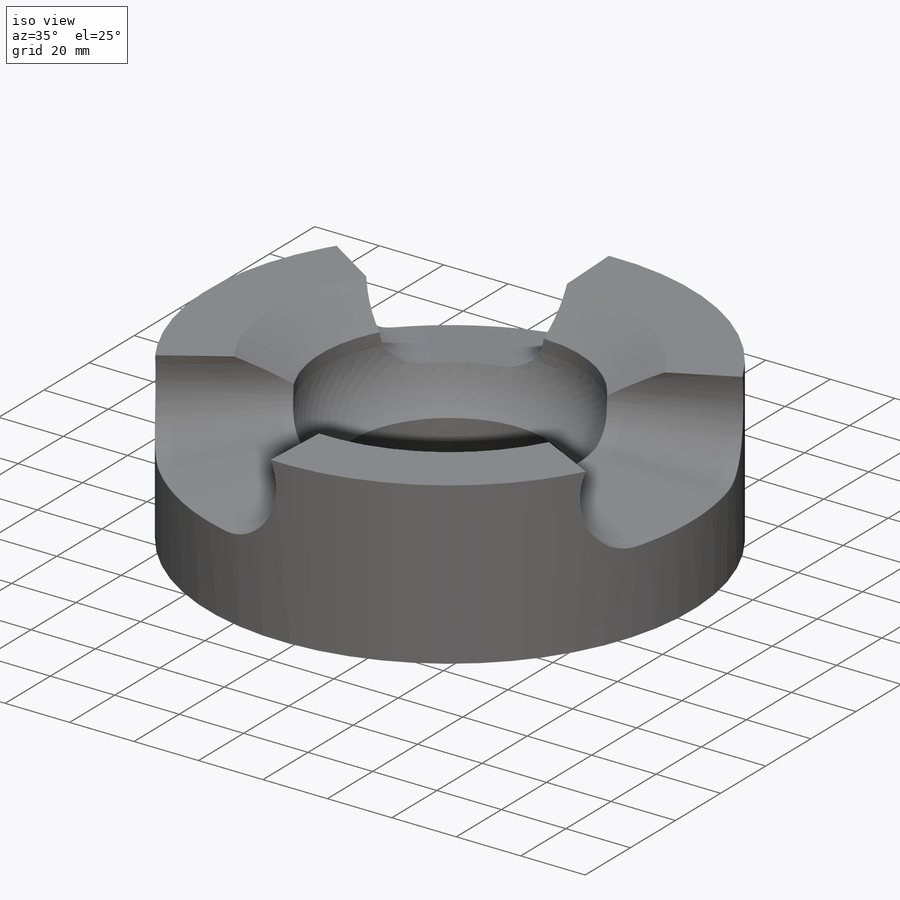
[diagram: iso view]
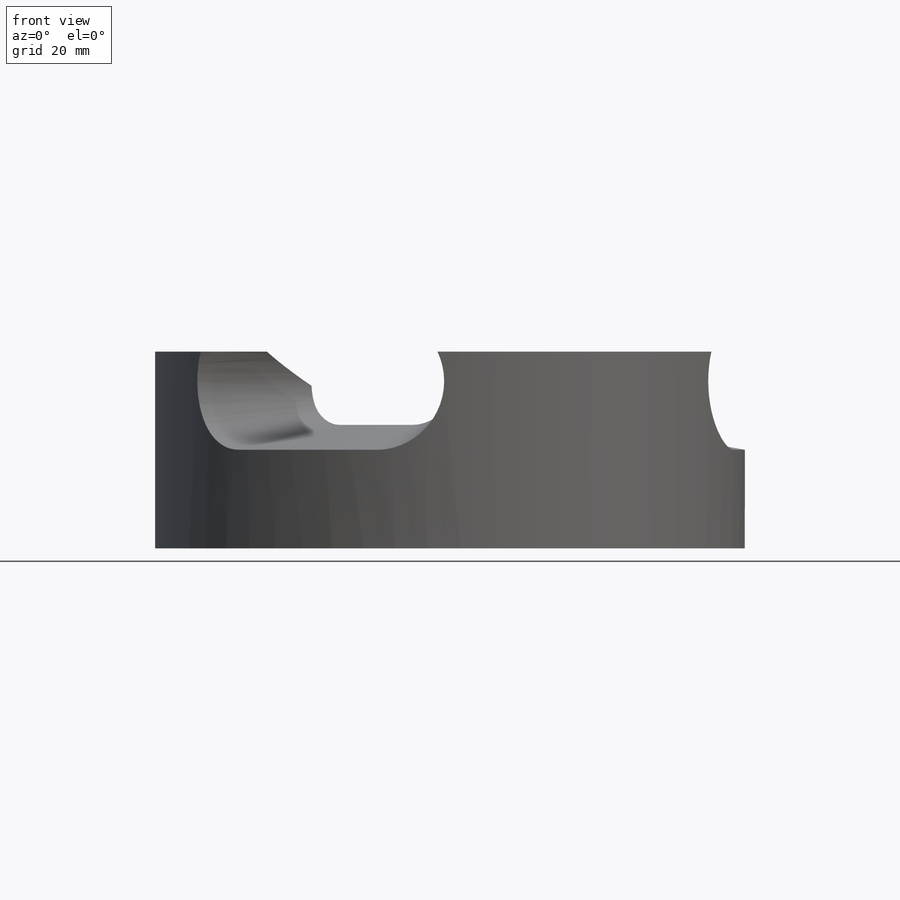
[diagram: front view]
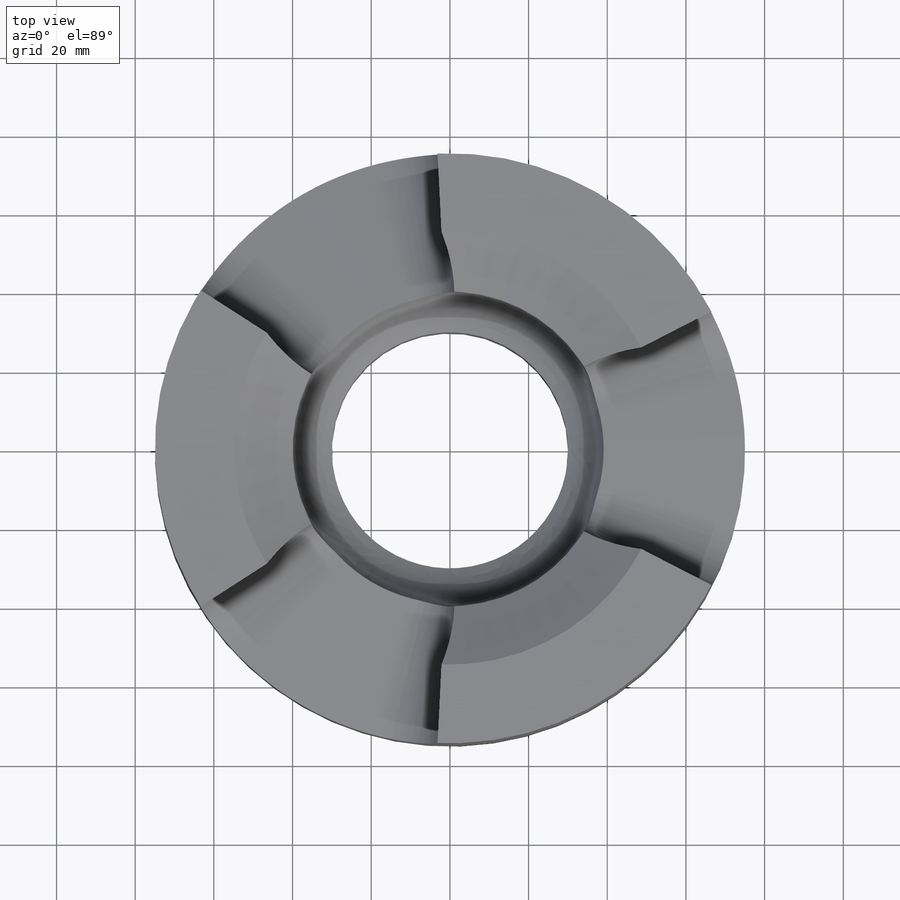
[diagram: top view]
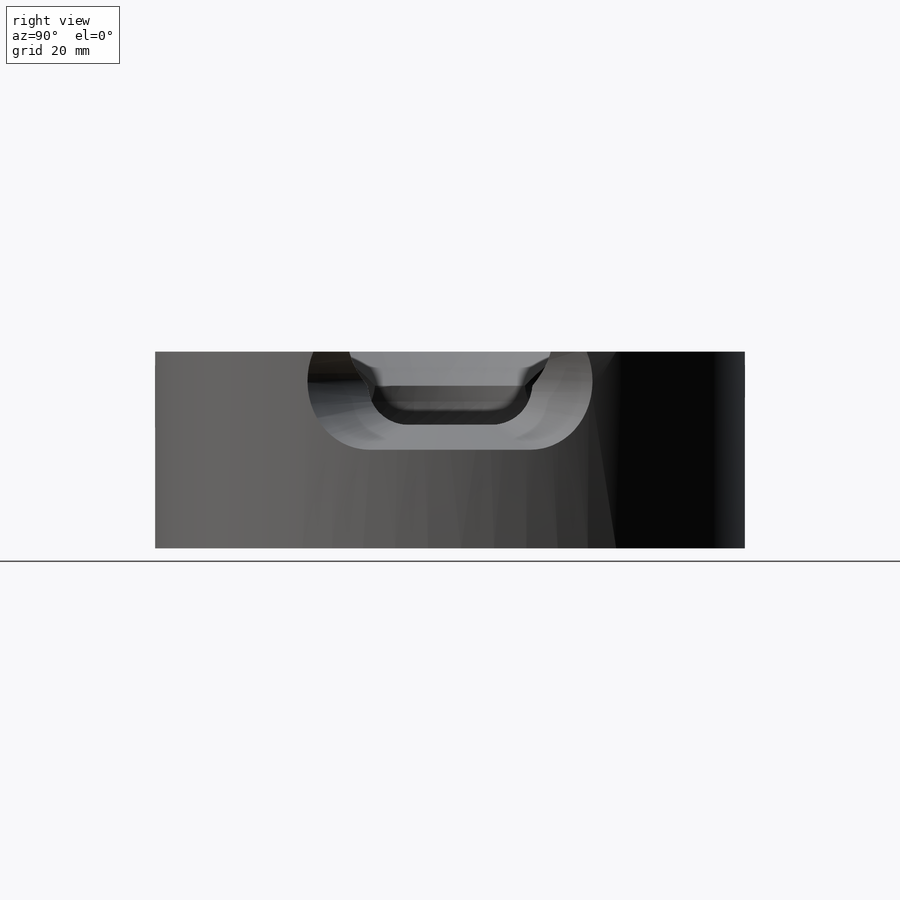
[diagram: right view]
SOLIDWORKS PART (.sldprt)
format: sldprt  version: not decoded by parser v0  size: 385,024 bytes
history: native  units: mm
features: plane x5, sketch x4, revolve x2, material x1, extrude x1, chamfer x1, cut_extrude x1, fillet x1, sweep x1, mirror x1, pattern_circular x1, boolean_combine x1 (+10 scaffold rows collapsed)
feature tree (30):
  scaffold x10  (default folders/planes/origin — collapsed)
  material  "Material <nicht festgelegt>"
  plane  "Ebene vorne"
  plane  "Ebene oben"
  plane  "Ebene rechts"
  sketch  "Skizze1"  dims[c1.D1=~144.595836mm c2.D1=150.0mm c2.D2=60.0mm]
  extrude  "Aufsatz-Linear austragen1"  Depth=50mm
  chamfer  "Fase1"  Distance=25mm Angle=30deg
  sketch  "Skizze2"  dims[D1=80.0mm]
  cut_extrude  "Schnitt-Linear austragen1"  Depth=50mm
  fillet  "Verrundung1"  Radius=20mm
  plane  "Ebene1"  Offset=7.5mm
  sketch  "Skizze4"  dims[c1.D1=~114.590737mm c2.D1=10.0deg c2.D2=20.0mm c2.D3=~21.102023mm c3.D3=90.0deg c4.D3=22.0mm c4.D4=10.0mm c5.D4=70.0mm c5.D5=42.0mm]
  revolve  "Rotation1"  Angle=360deg
  sketch  "Skizze5"  dims[c1.D1=~62.665138mm c2.D1=10.0deg c2.D2=20.0mm c2.D3=~21.45207mm c3.D3=90.0deg c4.D3=22.0mm c4.D4=42.0mm]
  plane  "Ebene2"
  revolve  "Oberflächenschnitt2"  [1 undecoded]
  sweep  "Schnitt-Austragung1"
  mirror  "Spiegeln1"
  pattern_circular  "Kreismuster2"  Count=3 Angle=360deg
  boolean_combine  "Kombinieren1"
decode coverage: 10 of 14 modeling features carry decoded parameters
note: ~ marks probable driven/reference dimensions
note: 1 parameter value undecoded
note: suppression state not decoded; provenance and decode notes live in map.json
